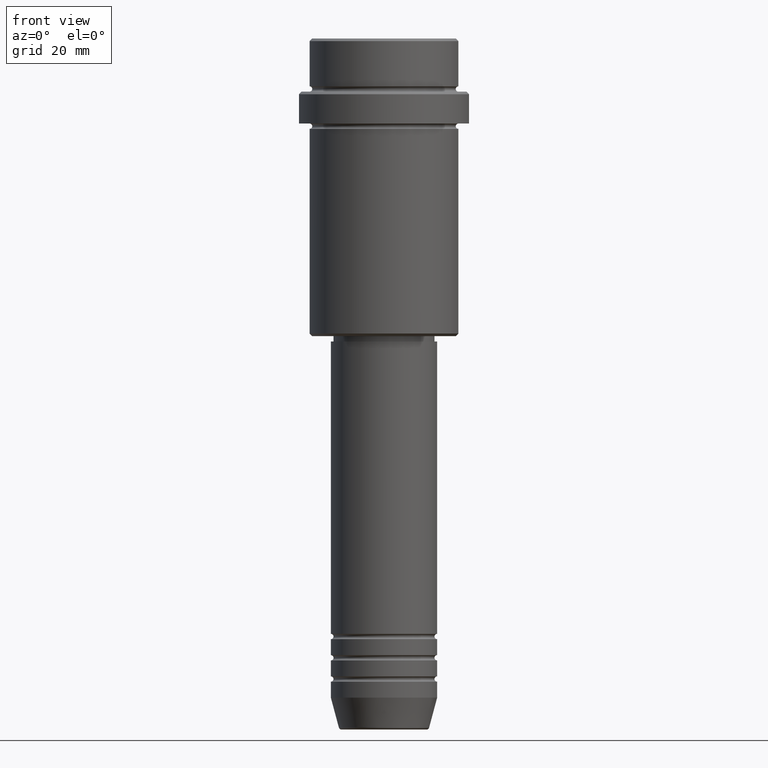
[diagram: clean part render]
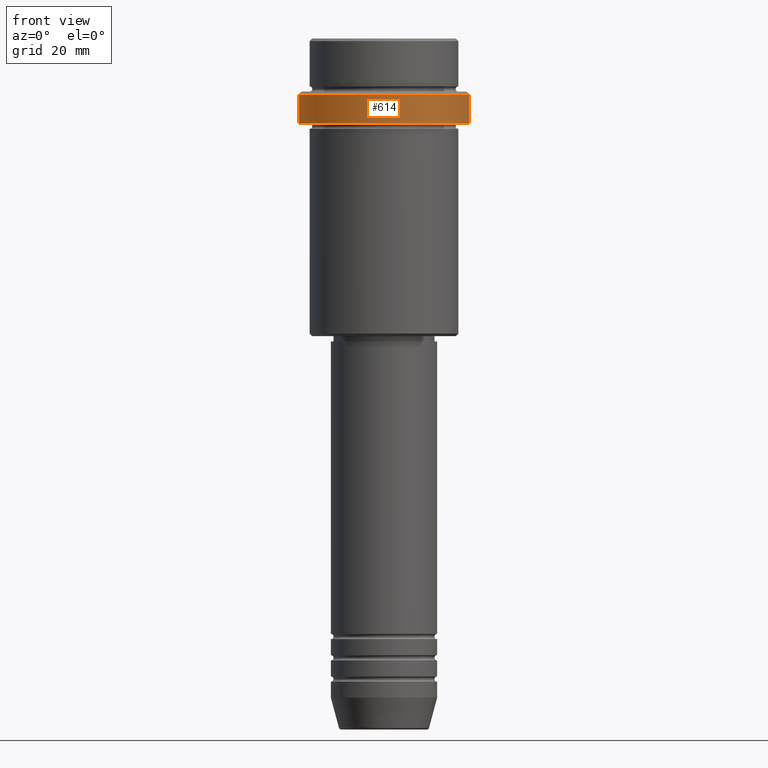
[diagram: same view with one face highlighted and labeled with its STEP entity id]
A machine part, front view. The second image highlights one B-rep face of the part: STEP entity #614.
In plain terms, the highlighted cylindrical surface (partial cylindrical patch) has radius 16 mm, axis along (-0, -0, 1).
Its self-contained STEP definition (entity closure, byte-faithful):
#12 = CARTESIAN_POINT ( 'NONE',  ( 15.99999999999998579, 0.000000000000000000, -16.00000000000000000 ) ) ;
#71 = AXIS2_PLACEMENT_3D ( 'NONE', #1239, #908, #1353 ) ;
#123 = VERTEX_POINT ( 'NONE', #154 ) ;
#154 = CARTESIAN_POINT ( 'NONE',  ( -15.99999999999998579, 1.959434878635763554E-15, -16.00000000000000000 ) ) ;
#200 = DIRECTION ( 'NONE',  ( 1.000000000000000000, 0.000000000000000000, 0.000000000000000000 ) ) ;
#231 = ORIENTED_EDGE ( 'NONE', *, *, #458, .T. ) ;
#237 = CARTESIAN_POINT ( 'NONE',  ( -15.99999999999998579, 1.959434878635763554E-15, -10.49999999999999822 ) ) ;
#255 = DIRECTION ( 'NONE',  ( -0.000000000000000000, -0.000000000000000000, 1.000000000000000000 ) ) ;
#268 = CYLINDRICAL_SURFACE ( 'NONE', #1281, 15.99999999999998579 ) ;
#274 = CARTESIAN_POINT ( 'NONE',  ( 0.000000000000000000, 0.000000000000000000, -16.00000000000000000 ) ) ;
#280 = ORIENTED_EDGE ( 'NONE', *, *, #1161, .T. ) ;
#290 = DIRECTION ( 'NONE',  ( -0.000000000000000000, -0.000000000000000000, 1.000000000000000000 ) ) ;
#458 = EDGE_CURVE ( 'NONE', #123, #1325, #1043, .T. ) ;
#488 = CIRCLE ( 'NONE', #71, 15.99999999999998579 ) ;
#551 = AXIS2_PLACEMENT_3D ( 'NONE', #274, #290, #1245 ) ;
#557 = EDGE_LOOP ( 'NONE', ( #662, #231, #609, #280 ) ) ;
#581 = FACE_OUTER_BOUND ( 'NONE', #557, .T. ) ;
#609 = ORIENTED_EDGE ( 'NONE', *, *, #927, .T. ) ;
#614 = ADVANCED_FACE ( 'NONE', ( #581 ), #268, .T. ) ;
#662 = ORIENTED_EDGE ( 'NONE', *, *, #697, .F. ) ;
#697 = EDGE_CURVE ( 'NONE', #123, #891, #1059, .T. ) ;
#791 = VERTEX_POINT ( 'NONE', #1186 ) ;
#891 = VERTEX_POINT ( 'NONE', #237 ) ;
#908 = DIRECTION ( 'NONE',  ( 0.000000000000000000, 0.000000000000000000, -1.000000000000000000 ) ) ;
#927 = EDGE_CURVE ( 'NONE', #1325, #791, #1264, .T. ) ;
#1000 = VECTOR ( 'NONE', #1363, 1000.000000000000000 ) ;
#1043 = CIRCLE ( 'NONE', #551, 15.99999999999998579 ) ;
#1046 = VECTOR ( 'NONE', #255, 1000.000000000000000 ) ;
#1059 = LINE ( 'NONE', #1140, #1000 ) ;
#1140 = CARTESIAN_POINT ( 'NONE',  ( -15.99999999999998579, 1.959434878635763554E-15, 0.000000000000000000 ) ) ;
#1161 = EDGE_CURVE ( 'NONE', #791, #891, #488, .T. ) ;
#1186 = CARTESIAN_POINT ( 'NONE',  ( 15.99999999999998579, 0.000000000000000000, -10.49999999999999822 ) ) ;
#1227 = CARTESIAN_POINT ( 'NONE',  ( 0.000000000000000000, 0.000000000000000000, 0.000000000000000000 ) ) ;
#1239 = CARTESIAN_POINT ( 'NONE',  ( 0.000000000000000000, 0.000000000000000000, -10.49999999999999822 ) ) ;
#1245 = DIRECTION ( 'NONE',  ( 1.000000000000000000, 0.000000000000000000, 0.000000000000000000 ) ) ;
#1264 = LINE ( 'NONE', #1329, #1046 ) ;
#1281 = AXIS2_PLACEMENT_3D ( 'NONE', #1227, #1300, #200 ) ;
#1300 = DIRECTION ( 'NONE',  ( -0.000000000000000000, -0.000000000000000000, 1.000000000000000000 ) ) ;
#1325 = VERTEX_POINT ( 'NONE', #12 ) ;
#1329 = CARTESIAN_POINT ( 'NONE',  ( 15.99999999999998579, 0.000000000000000000, 0.000000000000000000 ) ) ;
#1353 = DIRECTION ( 'NONE',  ( 1.000000000000000000, 0.000000000000000000, 0.000000000000000000 ) ) ;
#1363 = DIRECTION ( 'NONE',  ( -0.000000000000000000, -0.000000000000000000, 1.000000000000000000 ) ) ;